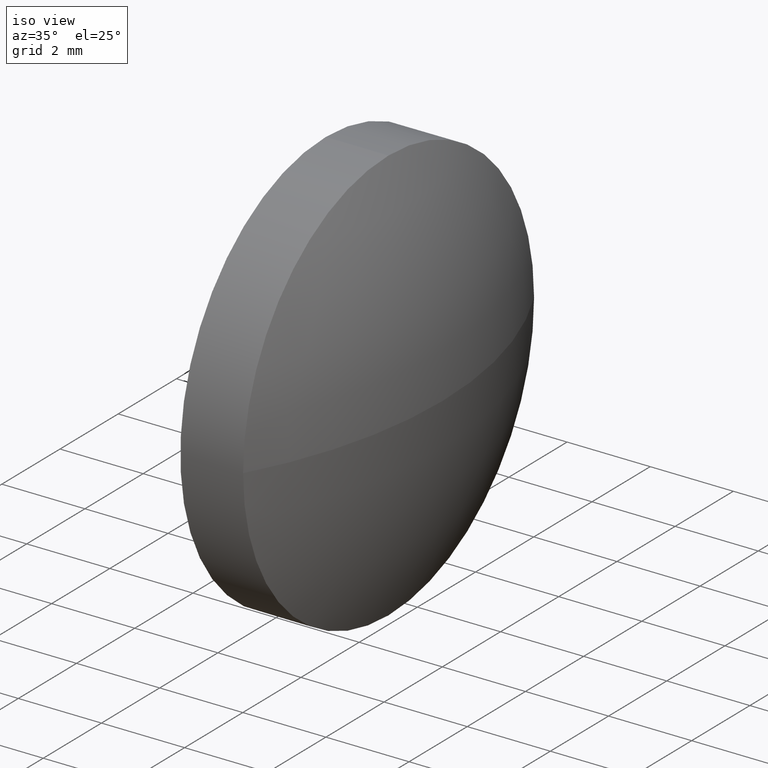
[diagram: clean part render]
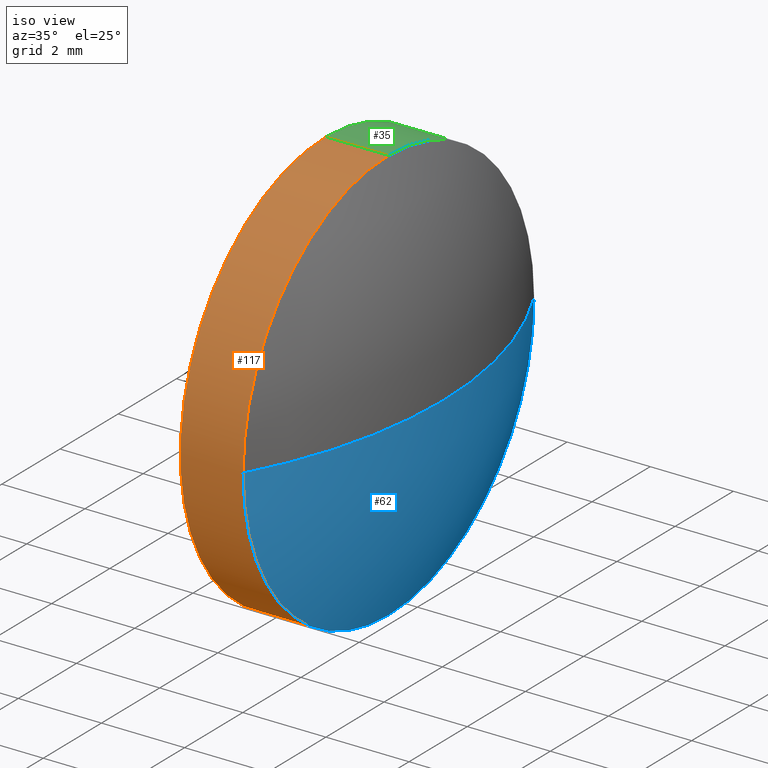
[diagram: same view with three faces highlighted in distinct colors, each labeled with its STEP entity id]
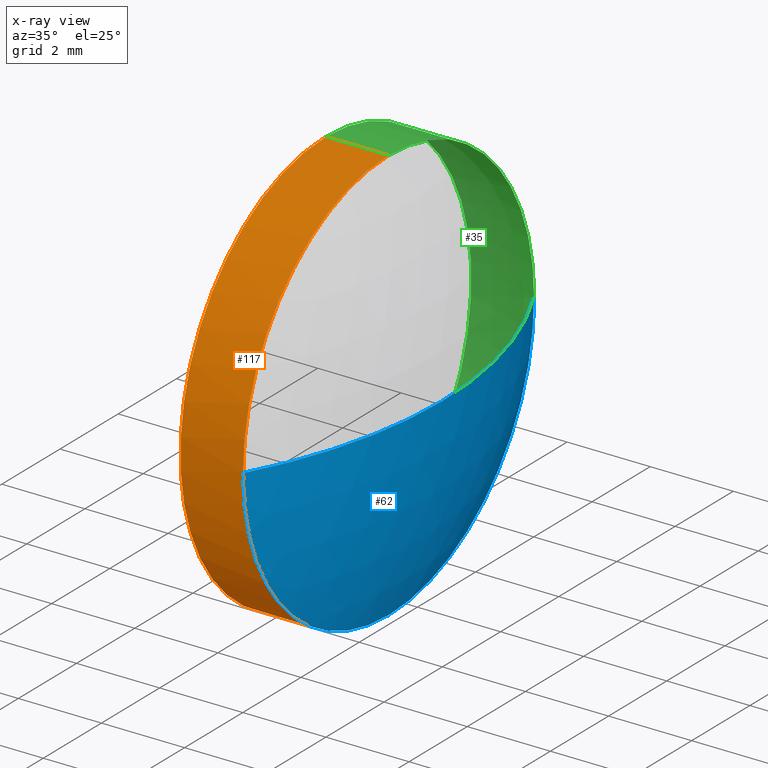
[diagram: x-ray of the same camera — body ghosted, the three highlighted faces saturated]
A machine part, iso view with three faces highlighted in distinct colors.
The next image is the same camera in x-ray (body ghosted, the three faces saturated) — at least one of them is partly hidden behind the body in this view.
Their STEP definitions:

[orange] entity #117 — the highlighted cylindrical surface (partial cylindrical patch) has radius 5 mm, axis along (-1, -0, -0).
#6 = CARTESIAN_POINT ( 'NONE',  ( 579.2775846960382800, 182.9834042929953700, -5.000000000000004400 ) ) ;
#8 = DIRECTION ( 'NONE',  ( -1.000000000000000000, -0.0000000000000000000, -0.0000000000000000000 ) ) ;
#16 = EDGE_CURVE ( 'NONE', #52, #73, #164, .T. ) ;
#20 = AXIS2_PLACEMENT_3D ( 'NONE', #176, #21, #67 ) ;
#21 = DIRECTION ( 'NONE',  ( -1.000000000000000000, -0.0000000000000000000, -0.0000000000000000000 ) ) ;
#22 = CARTESIAN_POINT ( 'NONE',  ( 582.0191052701056800, 182.9834042929953700, 5.000000000000004400 ) ) ;
#24 = CARTESIAN_POINT ( 'NONE',  ( 582.0191052701056800, 182.9834042929953700, 0.0000000000000000000 ) ) ;
#26 = ORIENTED_EDGE ( 'NONE', *, *, #16, .T. ) ;
#28 = CIRCLE ( 'NONE', #132, 5.000000000000004400 ) ;
#30 = CARTESIAN_POINT ( 'NONE',  ( 580.5091052701055800, 182.9834042929953700, 0.0000000000000000000 ) ) ;
#44 = CYLINDRICAL_SURFACE ( 'NONE', #20, 5.000000000000004400 ) ;
#51 = AXIS2_PLACEMENT_3D ( 'NONE', #91, #175, #161 ) ;
#52 = VERTEX_POINT ( 'NONE', #129 ) ;
#57 = ORIENTED_EDGE ( 'NONE', *, *, #144, .F. ) ;
#65 = ORIENTED_EDGE ( 'NONE', *, *, #115, .F. ) ;
#66 = LINE ( 'NONE', #114, #106 ) ;
#67 = DIRECTION ( 'NONE',  ( 0.0000000000000000000, 0.0000000000000000000, 1.000000000000000000 ) ) ;
#69 = AXIS2_PLACEMENT_3D ( 'NONE', #30, #121, #134 ) ;
#73 = VERTEX_POINT ( 'NONE', #22 ) ;
#90 = EDGE_LOOP ( 'NONE', ( #65, #111, #26, #138, #57 ) ) ;
#91 = CARTESIAN_POINT ( 'NONE',  ( 582.0191052701056800, 182.9834042929953700, 0.0000000000000000000 ) ) ;
#99 = VERTEX_POINT ( 'NONE', #177 ) ;
#100 = DIRECTION ( 'NONE',  ( 0.0000000000000000000, 0.0000000000000000000, 1.000000000000000000 ) ) ;
#103 = LINE ( 'NONE', #6, #112 ) ;
#106 = VECTOR ( 'NONE', #126, 1000.000000000000000 ) ;
#107 = DIRECTION ( 'NONE',  ( -1.000000000000000000, -0.0000000000000000000, -0.0000000000000000000 ) ) ;
#109 = CARTESIAN_POINT ( 'NONE',  ( 580.5091052701055800, 182.9834042929953700, 5.000000000000004400 ) ) ;
#111 = ORIENTED_EDGE ( 'NONE', *, *, #184, .T. ) ;
#112 = VECTOR ( 'NONE', #107, 1000.000000000000000 ) ;
#114 = CARTESIAN_POINT ( 'NONE',  ( 579.2775846960382800, 182.9834042929953700, 5.000000000000004400 ) ) ;
#115 = EDGE_CURVE ( 'NONE', #99, #119, #103, .T. ) ;
#117 = ADVANCED_FACE ( 'NONE', ( #153 ), #44, .T. ) ;
#119 = VERTEX_POINT ( 'NONE', #162 ) ;
#121 = DIRECTION ( 'NONE',  ( -1.000000000000000000, -0.0000000000000000000, -0.0000000000000000000 ) ) ;
#126 = DIRECTION ( 'NONE',  ( -1.000000000000000000, -0.0000000000000000000, -0.0000000000000000000 ) ) ;
#129 = CARTESIAN_POINT ( 'NONE',  ( 582.0191052701056800, 177.9834042929954000, -6.123233995736802800E-016 ) ) ;
#132 = AXIS2_PLACEMENT_3D ( 'NONE', #24, #8, #100 ) ;
#134 = DIRECTION ( 'NONE',  ( 0.0000000000000000000, 0.0000000000000000000, 1.000000000000000000 ) ) ;
#137 = EDGE_CURVE ( 'NONE', #73, #169, #66, .T. ) ;
#138 = ORIENTED_EDGE ( 'NONE', *, *, #137, .T. ) ;
#144 = EDGE_CURVE ( 'NONE', #119, #169, #147, .T. ) ;
#147 = CIRCLE ( 'NONE', #69, 5.000000000000004400 ) ;
#153 = FACE_OUTER_BOUND ( 'NONE', #90, .T. ) ;
#161 = DIRECTION ( 'NONE',  ( 0.0000000000000000000, 0.0000000000000000000, 1.000000000000000000 ) ) ;
#162 = CARTESIAN_POINT ( 'NONE',  ( 580.5091052701055800, 182.9834042929953700, -5.000000000000004400 ) ) ;
#164 = CIRCLE ( 'NONE', #51, 5.000000000000004400 ) ;
#169 = VERTEX_POINT ( 'NONE', #109 ) ;
#175 = DIRECTION ( 'NONE',  ( -1.000000000000000000, -0.0000000000000000000, -0.0000000000000000000 ) ) ;
#176 = CARTESIAN_POINT ( 'NONE',  ( 579.2775846960382800, 182.9834042929953700, 0.0000000000000000000 ) ) ;
#177 = CARTESIAN_POINT ( 'NONE',  ( 582.0191052701056800, 182.9834042929953700, -5.000000000000004400 ) ) ;
#184 = EDGE_CURVE ( 'NONE', #99, #52, #28, .T. ) ;

[blue] entity #62 — the highlighted spherical surface has radius 10.3349 mm.
#4 = DIRECTION ( 'NONE',  ( -0.0000000000000000000, 0.0000000000000000000, 1.000000000000000000 ) ) ;
#5 = DIRECTION ( 'NONE',  ( 0.0000000000000000000, 0.0000000000000000000, 1.000000000000000000 ) ) ;
#8 = DIRECTION ( 'NONE',  ( -1.000000000000000000, -0.0000000000000000000, -0.0000000000000000000 ) ) ;
#13 = CARTESIAN_POINT ( 'NONE',  ( 582.0191052701056800, 187.9834042929954000, 0.0000000000000000000 ) ) ;
#24 = CARTESIAN_POINT ( 'NONE',  ( 582.0191052701056800, 182.9834042929953700, 0.0000000000000000000 ) ) ;
#27 = AXIS2_PLACEMENT_3D ( 'NONE', #61, #76, #64 ) ;
#28 = CIRCLE ( 'NONE', #132, 5.000000000000004400 ) ;
#31 = VERTEX_POINT ( 'NONE', #186 ) ;
#52 = VERTEX_POINT ( 'NONE', #129 ) ;
#58 = EDGE_CURVE ( 'NONE', #31, #133, #183, .T. ) ;
#60 = ORIENTED_EDGE ( 'NONE', *, *, #184, .F. ) ;
#61 = CARTESIAN_POINT ( 'NONE',  ( 572.9741827894854400, 182.9834042929954300, 0.0000000000000000000 ) ) ;
#62 = ADVANCED_FACE ( 'NONE', ( #110 ), #140, .T. ) ;
#64 = DIRECTION ( 'NONE',  ( 0.0000000000000000000, 1.000000000000000000, 0.0000000000000000000 ) ) ;
#68 = CARTESIAN_POINT ( 'NONE',  ( 572.9741827894854400, 182.9834042929954300, 0.0000000000000000000 ) ) ;
#70 = ORIENTED_EDGE ( 'NONE', *, *, #58, .F. ) ;
#76 = DIRECTION ( 'NONE',  ( -0.0000000000000000000, 0.0000000000000000000, -1.000000000000000000 ) ) ;
#78 = EDGE_CURVE ( 'NONE', #133, #99, #149, .T. ) ;
#79 = CARTESIAN_POINT ( 'NONE',  ( 572.9741827894854400, 182.9834042929954300, 0.0000000000000000000 ) ) ;
#80 = DIRECTION ( 'NONE',  ( -1.000000000000000000, -0.0000000000000000000, -0.0000000000000000000 ) ) ;
#92 = CARTESIAN_POINT ( 'NONE',  ( 582.0191052701056800, 182.9834042929953700, 0.0000000000000000000 ) ) ;
#94 = DIRECTION ( 'NONE',  ( 0.0000000000000000000, 1.000000000000000000, 1.224646799147353500E-016 ) ) ;
#95 = AXIS2_PLACEMENT_3D ( 'NONE', #68, #163, #94 ) ;
#99 = VERTEX_POINT ( 'NONE', #177 ) ;
#100 = DIRECTION ( 'NONE',  ( 0.0000000000000000000, 0.0000000000000000000, 1.000000000000000000 ) ) ;
#101 = CIRCLE ( 'NONE', #95, 10.33492248062026200 ) ;
#104 = ORIENTED_EDGE ( 'NONE', *, *, #170, .T. ) ;
#110 = FACE_OUTER_BOUND ( 'NONE', #180, .T. ) ;
#124 = DIRECTION ( 'NONE',  ( 1.000000000000000000, 0.0000000000000000000, 0.0000000000000000000 ) ) ;
#129 = CARTESIAN_POINT ( 'NONE',  ( 582.0191052701056800, 177.9834042929954000, -6.123233995736802800E-016 ) ) ;
#130 = ORIENTED_EDGE ( 'NONE', *, *, #78, .F. ) ;
#132 = AXIS2_PLACEMENT_3D ( 'NONE', #24, #8, #100 ) ;
#133 = VERTEX_POINT ( 'NONE', #13 ) ;
#140 = SPHERICAL_SURFACE ( 'NONE', #27, 10.33492248062026400 ) ;
#149 = CIRCLE ( 'NONE', #181, 5.000000000000004400 ) ;
#163 = DIRECTION ( 'NONE',  ( 0.0000000000000000000, 1.224646799147353200E-016, -1.000000000000000000 ) ) ;
#165 = AXIS2_PLACEMENT_3D ( 'NONE', #79, #4, #124 ) ;
#170 = EDGE_CURVE ( 'NONE', #31, #52, #101, .T. ) ;
#177 = CARTESIAN_POINT ( 'NONE',  ( 582.0191052701056800, 182.9834042929953700, -5.000000000000004400 ) ) ;
#180 = EDGE_LOOP ( 'NONE', ( #70, #104, #60, #130 ) ) ;
#181 = AXIS2_PLACEMENT_3D ( 'NONE', #92, #80, #5 ) ;
#183 = CIRCLE ( 'NONE', #165, 10.33492248062028900 ) ;
#184 = EDGE_CURVE ( 'NONE', #99, #52, #28, .T. ) ;
#186 = CARTESIAN_POINT ( 'NONE',  ( 583.3091052701057600, 182.9834042929954300, 0.0000000000000000000 ) ) ;

[green] entity #35 — the highlighted cylindrical surface (partial cylindrical patch) has radius 5 mm, axis along (-1, -0, -0).
#5 = DIRECTION ( 'NONE',  ( 0.0000000000000000000, 0.0000000000000000000, 1.000000000000000000 ) ) ;
#6 = CARTESIAN_POINT ( 'NONE',  ( 579.2775846960382800, 182.9834042929953700, -5.000000000000004400 ) ) ;
#9 = ORIENTED_EDGE ( 'NONE', *, *, #137, .F. ) ;
#10 = AXIS2_PLACEMENT_3D ( 'NONE', #157, #102, #18 ) ;
#11 = ORIENTED_EDGE ( 'NONE', *, *, #172, .F. ) ;
#13 = CARTESIAN_POINT ( 'NONE',  ( 582.0191052701056800, 187.9834042929954000, 0.0000000000000000000 ) ) ;
#18 = DIRECTION ( 'NONE',  ( 0.0000000000000000000, 0.0000000000000000000, 1.000000000000000000 ) ) ;
#22 = CARTESIAN_POINT ( 'NONE',  ( 582.0191052701056800, 182.9834042929953700, 5.000000000000004400 ) ) ;
#23 = DIRECTION ( 'NONE',  ( -1.000000000000000000, -0.0000000000000000000, -0.0000000000000000000 ) ) ;
#34 = CYLINDRICAL_SURFACE ( 'NONE', #10, 5.000000000000004400 ) ;
#35 = ADVANCED_FACE ( 'NONE', ( #179 ), #34, .T. ) ;
#36 = EDGE_LOOP ( 'NONE', ( #142, #113, #11, #9, #55 ) ) ;
#41 = DIRECTION ( 'NONE',  ( 0.0000000000000000000, 0.0000000000000000000, 1.000000000000000000 ) ) ;
#49 = AXIS2_PLACEMENT_3D ( 'NONE', #54, #82, #41 ) ;
#54 = CARTESIAN_POINT ( 'NONE',  ( 582.0191052701056800, 182.9834042929953700, 0.0000000000000000000 ) ) ;
#55 = ORIENTED_EDGE ( 'NONE', *, *, #151, .T. ) ;
#66 = LINE ( 'NONE', #114, #106 ) ;
#73 = VERTEX_POINT ( 'NONE', #22 ) ;
#75 = CIRCLE ( 'NONE', #49, 5.000000000000004400 ) ;
#78 = EDGE_CURVE ( 'NONE', #133, #99, #149, .T. ) ;
#80 = DIRECTION ( 'NONE',  ( -1.000000000000000000, -0.0000000000000000000, -0.0000000000000000000 ) ) ;
#82 = DIRECTION ( 'NONE',  ( -1.000000000000000000, -0.0000000000000000000, -0.0000000000000000000 ) ) ;
#92 = CARTESIAN_POINT ( 'NONE',  ( 582.0191052701056800, 182.9834042929953700, 0.0000000000000000000 ) ) ;
#93 = CARTESIAN_POINT ( 'NONE',  ( 580.5091052701055800, 182.9834042929953700, 0.0000000000000000000 ) ) ;
#99 = VERTEX_POINT ( 'NONE', #177 ) ;
#102 = DIRECTION ( 'NONE',  ( -1.000000000000000000, -0.0000000000000000000, -0.0000000000000000000 ) ) ;
#103 = LINE ( 'NONE', #6, #112 ) ;
#106 = VECTOR ( 'NONE', #126, 1000.000000000000000 ) ;
#107 = DIRECTION ( 'NONE',  ( -1.000000000000000000, -0.0000000000000000000, -0.0000000000000000000 ) ) ;
#109 = CARTESIAN_POINT ( 'NONE',  ( 580.5091052701055800, 182.9834042929953700, 5.000000000000004400 ) ) ;
#112 = VECTOR ( 'NONE', #107, 1000.000000000000000 ) ;
#113 = ORIENTED_EDGE ( 'NONE', *, *, #115, .T. ) ;
#114 = CARTESIAN_POINT ( 'NONE',  ( 579.2775846960382800, 182.9834042929953700, 5.000000000000004400 ) ) ;
#115 = EDGE_CURVE ( 'NONE', #99, #119, #103, .T. ) ;
#119 = VERTEX_POINT ( 'NONE', #162 ) ;
#123 = AXIS2_PLACEMENT_3D ( 'NONE', #93, #23, #136 ) ;
#126 = DIRECTION ( 'NONE',  ( -1.000000000000000000, -0.0000000000000000000, -0.0000000000000000000 ) ) ;
#133 = VERTEX_POINT ( 'NONE', #13 ) ;
#136 = DIRECTION ( 'NONE',  ( 0.0000000000000000000, 0.0000000000000000000, 1.000000000000000000 ) ) ;
#137 = EDGE_CURVE ( 'NONE', #73, #169, #66, .T. ) ;
#139 = CIRCLE ( 'NONE', #123, 5.000000000000004400 ) ;
#142 = ORIENTED_EDGE ( 'NONE', *, *, #78, .T. ) ;
#149 = CIRCLE ( 'NONE', #181, 5.000000000000004400 ) ;
#151 = EDGE_CURVE ( 'NONE', #73, #133, #75, .T. ) ;
#157 = CARTESIAN_POINT ( 'NONE',  ( 579.2775846960382800, 182.9834042929953700, 0.0000000000000000000 ) ) ;
#162 = CARTESIAN_POINT ( 'NONE',  ( 580.5091052701055800, 182.9834042929953700, -5.000000000000004400 ) ) ;
#169 = VERTEX_POINT ( 'NONE', #109 ) ;
#172 = EDGE_CURVE ( 'NONE', #169, #119, #139, .T. ) ;
#177 = CARTESIAN_POINT ( 'NONE',  ( 582.0191052701056800, 182.9834042929953700, -5.000000000000004400 ) ) ;
#179 = FACE_OUTER_BOUND ( 'NONE', #36, .T. ) ;
#181 = AXIS2_PLACEMENT_3D ( 'NONE', #92, #80, #5 ) ;